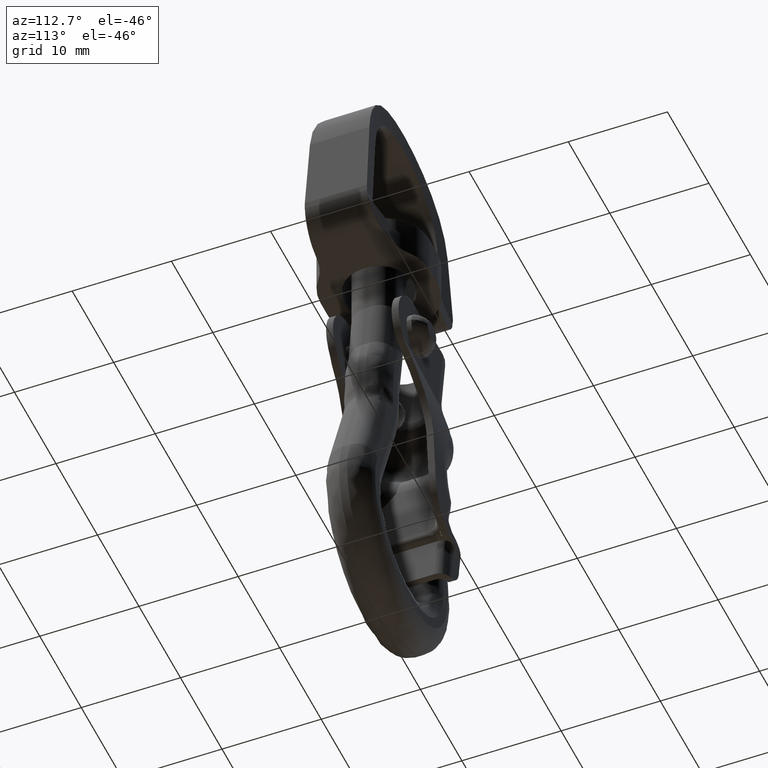
[diagram: clean part render]
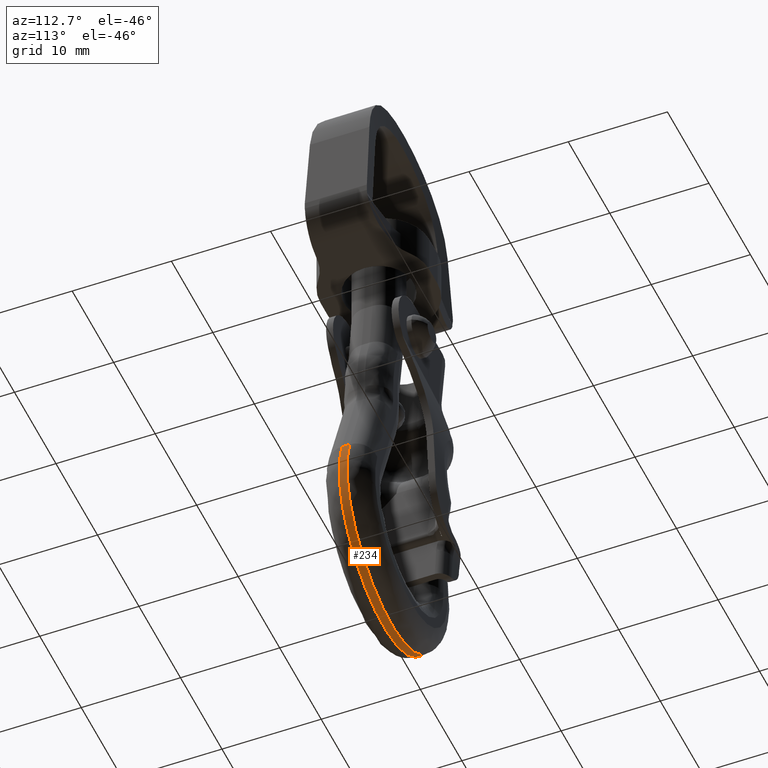
[diagram: same view with one face highlighted and labeled with its STEP entity id]
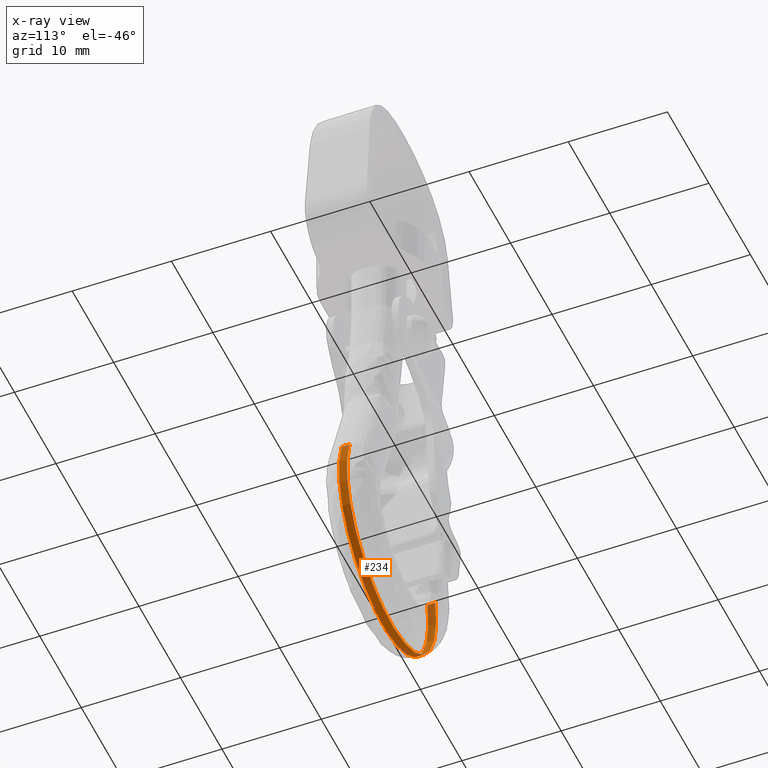
[diagram: x-ray of the same camera — body ghosted, the highlighted face saturated]
A machine part, auxiliary view. The second image highlights one B-rep face of the part: STEP entity #234.
The next image is the same camera in x-ray: the body ghosted, the highlighted face saturated — about 9% of this face is hidden behind the body in this view.
In plain terms, the highlighted cylindrical surface (partial cylindrical patch) has radius 10.75 mm, axis along (-0, -1, -0).
Its self-contained STEP definition (entity closure, byte-faithful):
#234=ADVANCED_FACE('',(#1204),#1203,.T.);
#1203=CYLINDRICAL_SURFACE('',#3200,1.07500000000E+01);
#1204=FACE_OUTER_BOUND('',#3201,.T.);
#3197=CARTESIAN_POINT('',(-2.10704575422E+00,-9.97600000000E+02,-3.57500000000E+01));
#3198=DIRECTION('',(-0.00000000000E+00,-1.00000000000E+00,-0.00000000000E+00));
#3199=DIRECTION('',(-6.97564737441E-02,0.00000000000E+00,9.97564050260E-01));
#3200=AXIS2_PLACEMENT_3D('',#3197,#3198,#3199);
#3201=EDGE_LOOP('',(#6000,#6001,#6002,#6003));
#6000=ORIENTED_EDGE('',*,*,#6792,.T.);
#6001=ORIENTED_EDGE('',*,*,#6798,.T.);
#6002=ORIENTED_EDGE('',*,*,#6872,.F.);
#6003=ORIENTED_EDGE('',*,*,#6837,.T.);
#6792=EDGE_CURVE('',#8284,#8277,#8285,.T.);
#6798=EDGE_CURVE('',#8277,#8318,#8325,.T.);
#6837=EDGE_CURVE('',#8563,#8284,#8582,.T.);
#6872=EDGE_CURVE('',#8563,#8318,#8804,.T.);
#8277=VERTEX_POINT('',#11754);
#8284=VERTEX_POINT('',#11769);
#8285=LINE('',#11770,#11771);
#8318=VERTEX_POINT('',#11802);
#8325=CIRCLE('',#11810,1.07500000000E+01);
#8563=VERTEX_POINT('',#11983);
#8582=CIRCLE('',#11997,1.07500000000E+01);
#8804=LINE('',#12142,#12143);
#11754=CARTESIAN_POINT('',(-1.26295216986E+01,4.00000000000E-01,-3.35500000000E+01));
#11769=CARTESIAN_POINT('',(-1.26295216986E+01,-4.00000000000E-01,-3.35500000000E+01));
#11770=CARTESIAN_POINT('',(-1.26295216986E+01,-4.00000000000E-01,-3.35500000000E+01));
#11771=VECTOR('',#11772,8.00000000000E-01);
#11772=DIRECTION('',(0.00000000000E+00,1.00000000000E+00,0.00000000000E+00));
#11802=CARTESIAN_POINT('',(7.98866265695E+00,4.00000000000E-01,-3.20568750798E+01));
#11807=CARTESIAN_POINT('',(-2.10704575422E+00,4.00000000000E-01,-3.57500000000E+01));
#11808=DIRECTION('',(0.00000000000E+00,-1.00000000000E+00,0.00000000000E+00));
#11809=DIRECTION('',(9.39135666156E-01,0.00000000000E+00,3.43546504209E-01));
#11810=AXIS2_PLACEMENT_3D('',#11807,#11808,#11809);
#11983=CARTESIAN_POINT('',(7.98866265695E+00,-4.00000000000E-01,-3.20568750798E+01));
#11994=CARTESIAN_POINT('',(-2.10704575422E+00,-4.00000000000E-01,-3.57500000000E+01));
#11995=DIRECTION('',(-0.00000000000E+00,1.00000000000E+00,0.00000000000E+00));
#11996=DIRECTION('',(9.39135666156E-01,0.00000000000E+00,3.43546504209E-01));
#11997=AXIS2_PLACEMENT_3D('',#11994,#11995,#11996);
#12142=CARTESIAN_POINT('',(7.98866265695E+00,-4.00000000000E-01,-3.20568750798E+01));
#12143=VECTOR('',#12144,8.00000000000E-01);
#12144=DIRECTION('',(0.00000000000E+00,1.00000000000E+00,0.00000000000E+00));